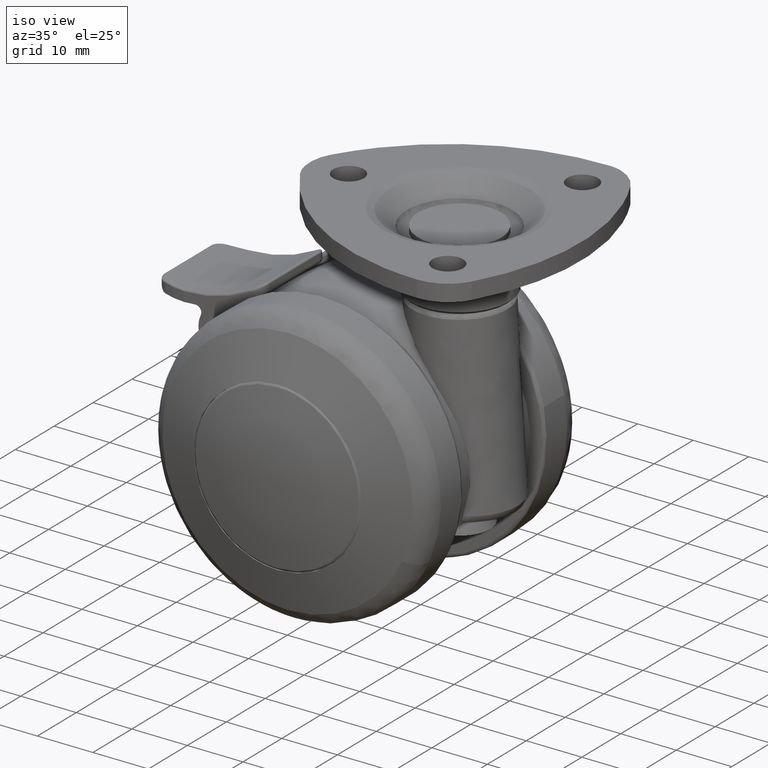
[diagram: clean part render]
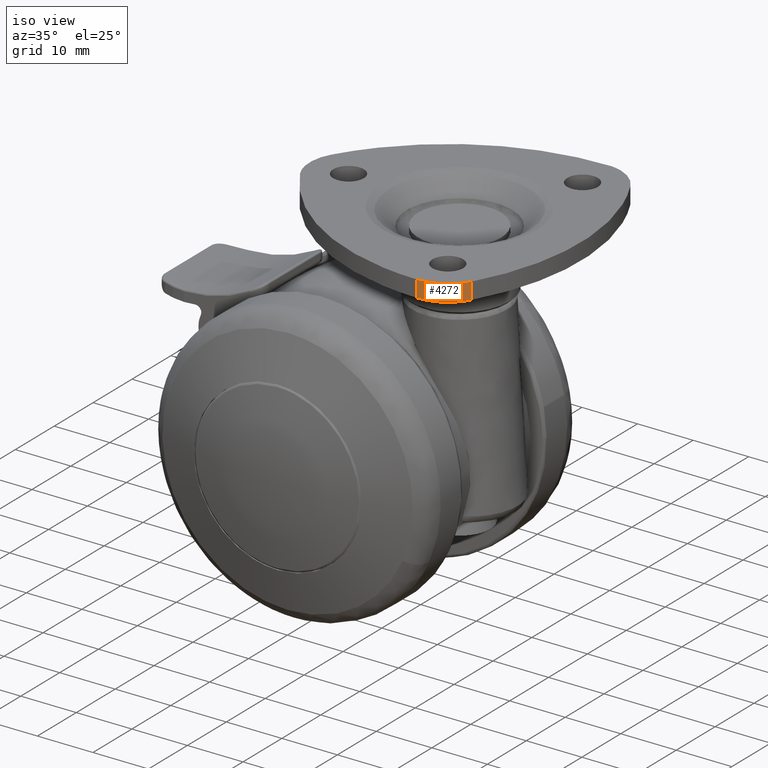
[diagram: same view with one face highlighted and labeled with its STEP entity id]
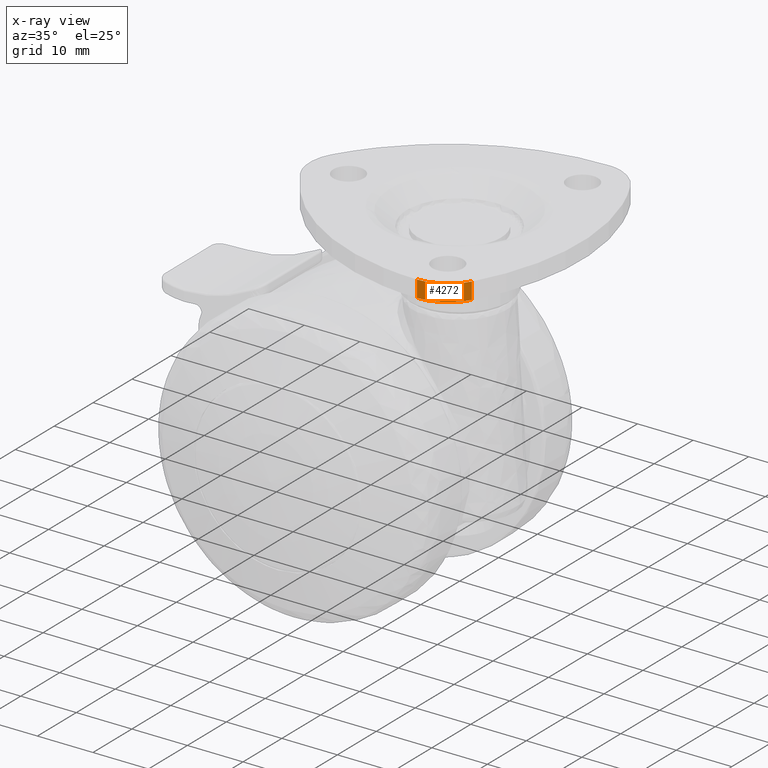
[diagram: x-ray of the same camera — body ghosted, the highlighted face saturated]
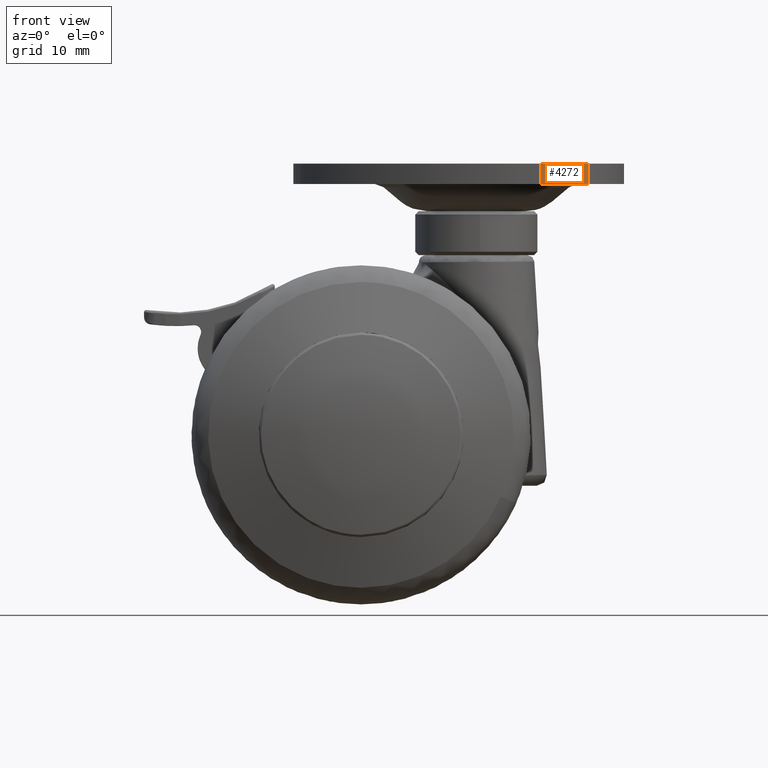
[diagram: same view with one face highlighted and labeled with its STEP entity id]
A machine part, iso view. The second image highlights one B-rep face of the part: STEP entity #4272.
The next image is the same camera in x-ray: the body ghosted, the highlighted face saturated — about 0% of this face is hidden behind the body in this view.
A second angle (front view) of the same face is appended — the face is thin or edge-on in the first view.
In plain terms, the highlighted face is a freeform B-spline surface patch.
Its self-contained STEP definition (entity closure, byte-faithful):
#4181=CARTESIAN_POINT('',(33.467806759583453,-20.385088002863849,37.0));
#4182=VERTEX_POINT('',#4181);
#4197=CARTESIAN_POINT('',(33.467806759583453,-20.385088002863849,40.0));
#4198=VERTEX_POINT('',#4197);
#4212=CARTESIAN_POINT('',(33.467806759583453,-20.385088002863849,40.0));
#4213=CARTESIAN_POINT('',(33.467806759583453,-20.385088002863849,37.0));
#4214=QUASI_UNIFORM_CURVE('',1,(#4212,#4213),.UNSPECIFIED.,.F.,.U.);
#4215=EDGE_CURVE('',#4198,#4182,#4214,.T.);
#4220=CARTESIAN_POINT('',(26.209371367220339,-24.449202393008338,40.075000000000010));
#4221=CARTESIAN_POINT('',(26.209371367220339,-24.449202393008338,36.923124999999992));
#4222=CARTESIAN_POINT('',(31.357518202992956,-24.636350235968639,40.074999999999996));
#4223=CARTESIAN_POINT('',(31.357518202992956,-24.636350235968639,36.923124999999992));
#4224=CARTESIAN_POINT('',(33.658013175184642,-20.026994202776891,40.075000000000017));
#4225=CARTESIAN_POINT('',(33.658013175184642,-20.026994202776891,36.923124999999992));
#4233=(BOUNDED_SURFACE()B_SPLINE_SURFACE(1,2,((#4220,#4222,#4224),(#4221,#4223,#4225)),.UNSPECIFIED.,.F.,.F.,.U.)B_SPLINE_SURFACE_WITH_KNOTS((2,2),(3,3),(0.0,3.151875000000020),(0.0,9.411810890562721),.UNSPECIFIED.)GEOMETRIC_REPRESENTATION_ITEM()RATIONAL_B_SPLINE_SURFACE(((1.0,0.839810560654668,0.997736125508831),(1.0,0.839810560654668,0.997736125508831)))REPRESENTATION_ITEM('')SURFACE());
#4234=CARTESIAN_POINT('',(26.418748310005348,-24.454070550634601,37.0));
#4235=VERTEX_POINT('',#4234);
#4236=CARTESIAN_POINT('',(26.418748310005348,-24.454070550634590,37.0));
#4237=CARTESIAN_POINT('',(31.145374567690411,-24.502078316119857,37.0));
#4238=CARTESIAN_POINT('',(33.467806759583453,-20.385088002863849,37.0));
#4246=(BOUNDED_CURVE()B_SPLINE_CURVE(2,(#4236,#4237,#4238),.UNSPECIFIED.,.F.,.U.)CURVE()GEOMETRIC_REPRESENTATION_ITEM()QUASI_UNIFORM_CURVE()RATIONAL_B_SPLINE_CURVE((1.0,0.860945507312461,1.0))REPRESENTATION_ITEM(''));
#4247=EDGE_CURVE('',#4235,#4182,#4246,.T.);
#4248=ORIENTED_EDGE('',*,*,#4247,.T.);
#4249=ORIENTED_EDGE('',*,*,#4215,.F.);
#4250=CARTESIAN_POINT('',(26.418748310005348,-24.454070550634601,40.0));
#4251=VERTEX_POINT('',#4250);
#4252=CARTESIAN_POINT('',(26.418748310005348,-24.454070550634590,40.0));
#4253=CARTESIAN_POINT('',(31.145374567690411,-24.502078316119857,39.999999999999993));
#4254=CARTESIAN_POINT('',(33.467806759583453,-20.385088002863849,40.0));
#4262=(BOUNDED_CURVE()B_SPLINE_CURVE(2,(#4252,#4253,#4254),.UNSPECIFIED.,.F.,.U.)CURVE()GEOMETRIC_REPRESENTATION_ITEM()QUASI_UNIFORM_CURVE()RATIONAL_B_SPLINE_CURVE((1.0,0.860945507312461,1.0))REPRESENTATION_ITEM(''));
#4263=EDGE_CURVE('',#4251,#4198,#4262,.T.);
#4264=ORIENTED_EDGE('',*,*,#4263,.F.);
#4265=CARTESIAN_POINT('',(26.418748310005348,-24.454070550634601,40.0));
#4266=CARTESIAN_POINT('',(26.418748310005348,-24.454070550634601,37.0));
#4267=QUASI_UNIFORM_CURVE('',1,(#4265,#4266),.UNSPECIFIED.,.F.,.U.);
#4268=EDGE_CURVE('',#4251,#4235,#4267,.T.);
#4269=ORIENTED_EDGE('',*,*,#4268,.T.);
#4270=EDGE_LOOP('',(#4248,#4249,#4264,#4269));
#4271=FACE_OUTER_BOUND('',#4270,.T.);
#4272=ADVANCED_FACE('',(#4271),#4233,.T.);